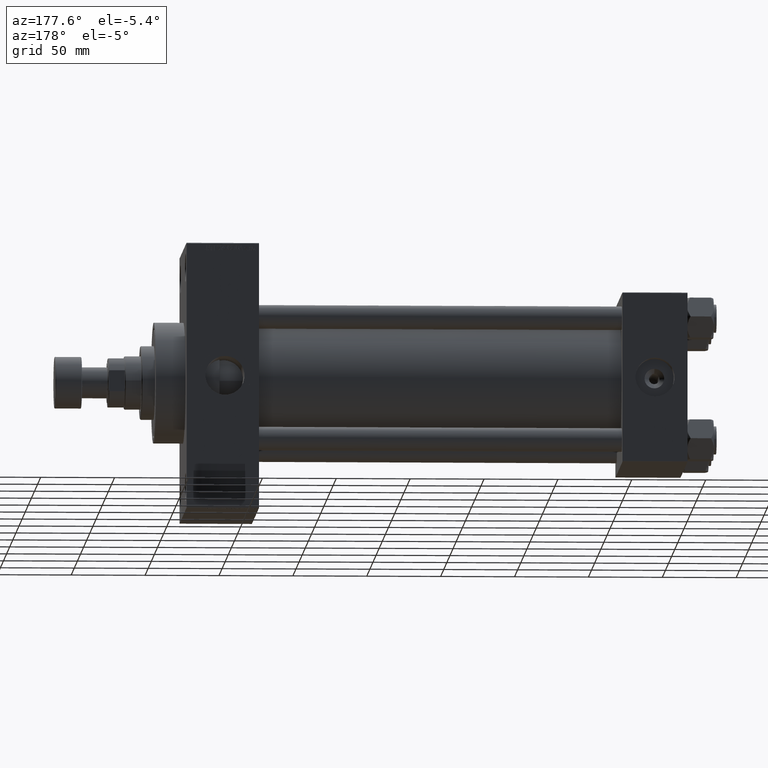
[diagram: clean part render]
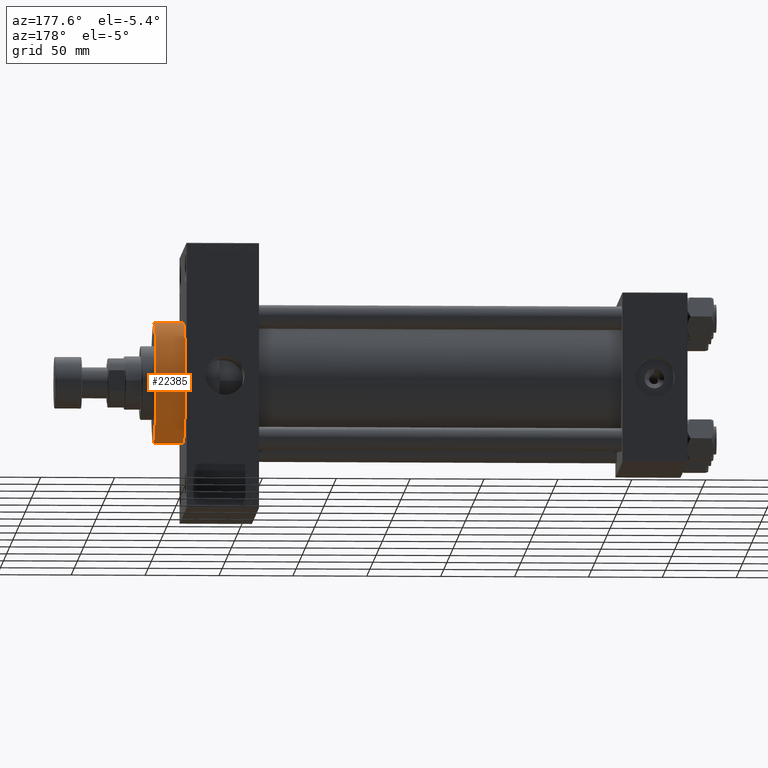
[diagram: same view with one face highlighted and labeled with its STEP entity id]
A machine part, auxiliary view. The second image highlights one B-rep face of the part: STEP entity #22385.
In plain terms, the highlighted cylindrical surface (partial cylindrical patch) has radius 41 mm, axis along (-1, -0, -0).
Its self-contained STEP definition (entity closure, byte-faithful):
#195 = CYLINDRICAL_SURFACE ( 'NONE', #15893, 41.00000000000000000 ) ;
#3538 = CARTESIAN_POINT ( 'NONE',  ( 359.0000000000000000, 0.000000000000000000, 41.00000000000000000 ) ) ;
#5369 = CIRCLE ( 'NONE', #27213, 41.00000000000000000 ) ;
#6133 = ORIENTED_EDGE ( 'NONE', *, *, #47885, .F. ) ;
#7593 = LINE ( 'NONE', #10790, #34549 ) ;
#7963 = EDGE_CURVE ( 'NONE', #12844, #20256, #5369, .T. ) ;
#8358 = LINE ( 'NONE', #30885, #9316 ) ;
#9316 = VECTOR ( 'NONE', #23266, 1000.000000000000000 ) ;
#10192 = ORIENTED_EDGE ( 'NONE', *, *, #7963, .T. ) ;
#10790 = CARTESIAN_POINT ( 'NONE',  ( 359.0000000000000000, 0.000000000000000000, 41.00000000000000000 ) ) ;
#11441 = DIRECTION ( 'NONE',  ( 0.000000000000000000, 0.000000000000000000, 1.000000000000000000 ) ) ;
#12844 = VERTEX_POINT ( 'NONE', #25515 ) ;
#13102 = CIRCLE ( 'NONE', #24777, 41.00000000000000000 ) ;
#13448 = CARTESIAN_POINT ( 'NONE',  ( 338.9999999999999432, 0.000000000000000000, 0.000000000000000000 ) ) ;
#15597 = CARTESIAN_POINT ( 'NONE',  ( 359.0000000000000000, 0.000000000000000000, 0.000000000000000000 ) ) ;
#15893 = AXIS2_PLACEMENT_3D ( 'NONE', #15597, #30529, #11441 ) ;
#19525 = ORIENTED_EDGE ( 'NONE', *, *, #40313, .T. ) ;
#20256 = VERTEX_POINT ( 'NONE', #45535 ) ;
#22385 = ADVANCED_FACE ( 'NONE', ( #27105 ), #195, .T. ) ;
#23266 = DIRECTION ( 'NONE',  ( -1.000000000000000000, -0.000000000000000000, -0.000000000000000000 ) ) ;
#23348 = ORIENTED_EDGE ( 'NONE', *, *, #31746, .F. ) ;
#23377 = CARTESIAN_POINT ( 'NONE',  ( 359.0000000000000000, 5.021051876504148963E-15, -41.00000000000000000 ) ) ;
#24777 = AXIS2_PLACEMENT_3D ( 'NONE', #37320, #30489, #33678 ) ;
#25515 = CARTESIAN_POINT ( 'NONE',  ( 338.9999999999999432, 5.021051876504148963E-15, -41.00000000000000000 ) ) ;
#27105 = FACE_OUTER_BOUND ( 'NONE', #46060, .T. ) ;
#27213 = AXIS2_PLACEMENT_3D ( 'NONE', #13448, #31578, #28376 ) ;
#28376 = DIRECTION ( 'NONE',  ( 0.000000000000000000, 0.000000000000000000, -1.000000000000000000 ) ) ;
#30489 = DIRECTION ( 'NONE',  ( 1.000000000000000000, 0.000000000000000000, 0.000000000000000000 ) ) ;
#30529 = DIRECTION ( 'NONE',  ( -1.000000000000000000, -0.000000000000000000, -0.000000000000000000 ) ) ;
#30885 = CARTESIAN_POINT ( 'NONE',  ( 359.0000000000000000, 5.021051876504148963E-15, -41.00000000000000000 ) ) ;
#31578 = DIRECTION ( 'NONE',  ( 1.000000000000000000, 0.000000000000000000, 0.000000000000000000 ) ) ;
#31746 = EDGE_CURVE ( 'NONE', #36498, #33882, #13102, .T. ) ;
#33678 = DIRECTION ( 'NONE',  ( 0.000000000000000000, 0.000000000000000000, -1.000000000000000000 ) ) ;
#33882 = VERTEX_POINT ( 'NONE', #3538 ) ;
#34549 = VECTOR ( 'NONE', #37674, 1000.000000000000000 ) ;
#36498 = VERTEX_POINT ( 'NONE', #23377 ) ;
#37320 = CARTESIAN_POINT ( 'NONE',  ( 359.0000000000000000, 0.000000000000000000, 0.000000000000000000 ) ) ;
#37674 = DIRECTION ( 'NONE',  ( -1.000000000000000000, -0.000000000000000000, -0.000000000000000000 ) ) ;
#40313 = EDGE_CURVE ( 'NONE', #36498, #12844, #8358, .T. ) ;
#45535 = CARTESIAN_POINT ( 'NONE',  ( 338.9999999999999432, 0.000000000000000000, 41.00000000000000000 ) ) ;
#46060 = EDGE_LOOP ( 'NONE', ( #23348, #19525, #10192, #6133 ) ) ;
#47885 = EDGE_CURVE ( 'NONE', #33882, #20256, #7593, .T. ) ;